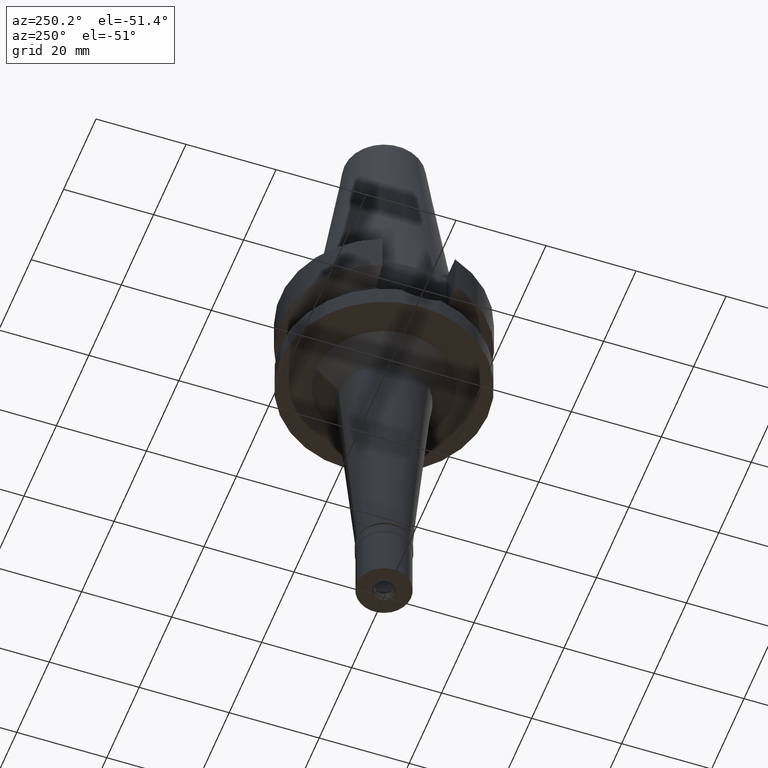
[diagram: clean part render]
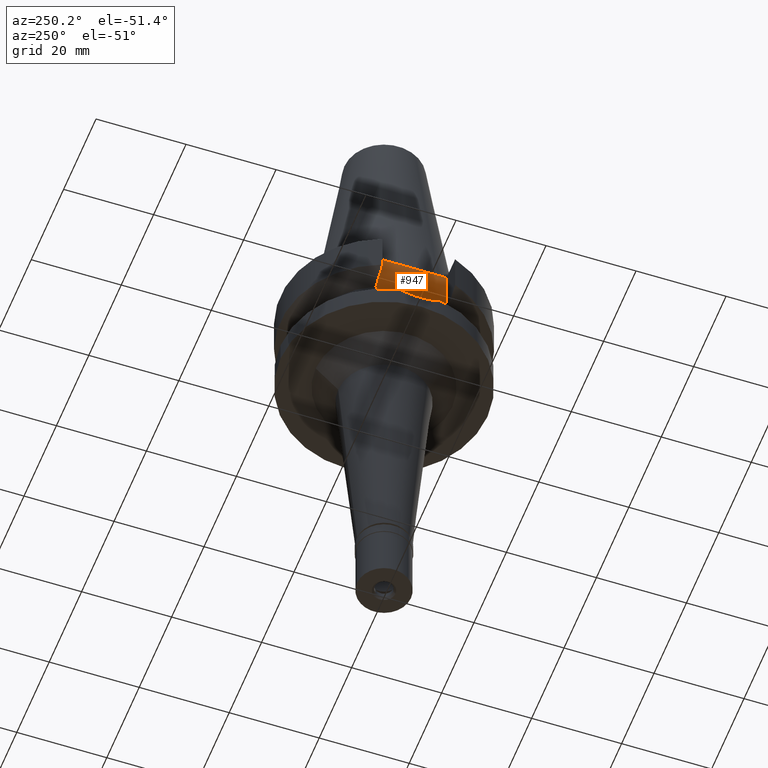
[diagram: same view with one face highlighted and labeled with its STEP entity id]
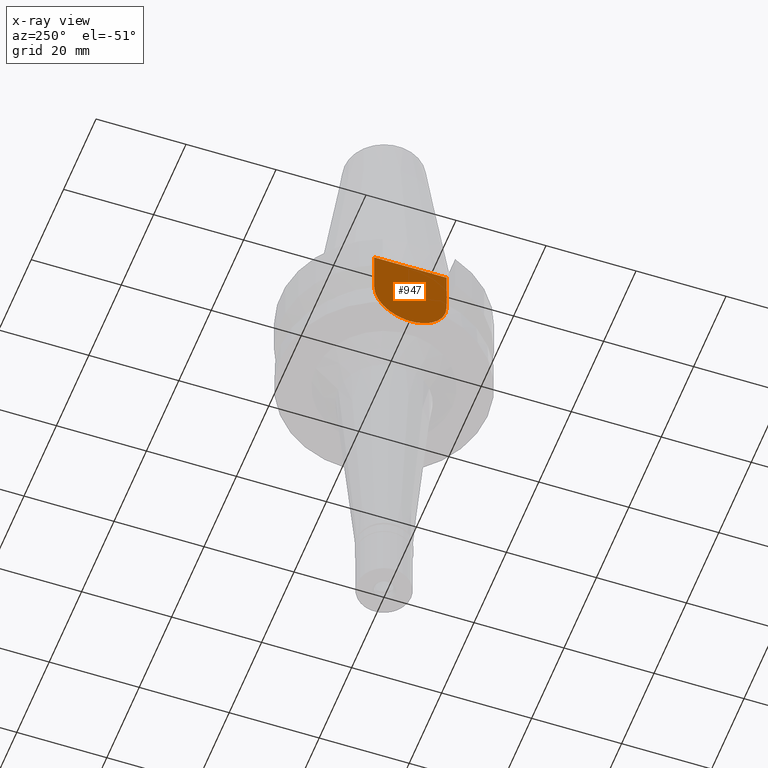
[diagram: x-ray of the same camera — body ghosted, the highlighted face saturated]
A machine part, auxiliary view. The second image highlights one B-rep face of the part: STEP entity #947.
The next image is the same camera in x-ray: the body ghosted, the highlighted face saturated — about 0% of this face is hidden behind the body in this view.
In plain terms, the highlighted planar face has unit normal (-1, 0, 0).
Its self-contained STEP definition (entity closure, byte-faithful):
#28 = VECTOR ( 'NONE', #1097, 1000.000000000000000 ) ;
#100 = DIRECTION ( 'NONE',  ( 0.0000000000000000000, 0.0000000000000000000, 1.000000000000000000 ) ) ;
#152 = CARTESIAN_POINT ( 'NONE',  ( -16.29999999999999716, -8.050000000000000711, -1.000000000000000000 ) ) ;
#202 = ORIENTED_EDGE ( 'NONE', *, *, #746, .F. ) ;
#339 = ORIENTED_EDGE ( 'NONE', *, *, #2891, .F. ) ;
#349 = CARTESIAN_POINT ( 'NONE',  ( -16.29999999999999716, -8.050000000000000711, -1.000000000000000000 ) ) ;
#369 = VERTEX_POINT ( 'NONE', #1563 ) ;
#492 = CARTESIAN_POINT ( 'NONE',  ( -16.29999999999999716, -8.050000000000000711, -10.94999999999999929 ) ) ;
#565 = CARTESIAN_POINT ( 'NONE',  ( -16.29999999999999716, 2.249676170033999711E-14, 0.0000000000000000000 ) ) ;
#707 = DIRECTION ( 'NONE',  ( 0.0000000000000000000, 0.0000000000000000000, 1.000000000000000000 ) ) ;
#746 = EDGE_CURVE ( 'NONE', #2005, #2397, #2094, .T. ) ;
#774 = FACE_OUTER_BOUND ( 'NONE', #2207, .T. ) ;
#909 = CARTESIAN_POINT ( 'NONE',  ( -16.29999999999999716, 8.050000000000000711, -10.94999999999999929 ) ) ;
#947 = ADVANCED_FACE ( 'NONE', ( #774 ), #1212, .T. ) ;
#1050 = DIRECTION ( 'NONE',  ( 0.0000000000000000000, 0.0000000000000000000, -1.000000000000000000 ) ) ;
#1097 = DIRECTION ( 'NONE',  ( 0.0000000000000000000, 1.000000000000000000, 0.0000000000000000000 ) ) ;
#1108 = CARTESIAN_POINT ( 'NONE',  ( -16.29999999999999716, 8.050000000000000711, -10.94999999999999929 ) ) ;
#1152 = EDGE_CURVE ( 'NONE', #2412, #369, #2448, .T. ) ;
#1166 = CARTESIAN_POINT ( 'NONE',  ( -16.29999999999999716, -8.050000000000000711, -1.000000000000000000 ) ) ;
#1212 = PLANE ( 'NONE',  #2003 ) ;
#1282 = CARTESIAN_POINT ( 'NONE',  ( -16.29999999999999716, 1.981478521019999946E-14, -10.94999999999999929 ) ) ;
#1368 = LINE ( 'NONE', #1108, #2791 ) ;
#1563 = CARTESIAN_POINT ( 'NONE',  ( -16.29999999999999716, 8.050000000000000711, -1.000000000000000000 ) ) ;
#1642 = VECTOR ( 'NONE', #1711, 1000.000000000000000 ) ;
#1711 = DIRECTION ( 'NONE',  ( 0.0000000000000000000, 0.0000000000000000000, -1.000000000000000000 ) ) ;
#1741 = EDGE_CURVE ( 'NONE', #2397, #369, #1368, .T. ) ;
#2003 = AXIS2_PLACEMENT_3D ( 'NONE', #565, #2125, #100 ) ;
#2005 = VERTEX_POINT ( 'NONE', #492 ) ;
#2094 = CIRCLE ( 'NONE', #2528, 8.050000000000000711 ) ;
#2125 = DIRECTION ( 'NONE',  ( -1.000000000000000000, 0.0000000000000000000, 0.0000000000000000000 ) ) ;
#2181 = LINE ( 'NONE', #349, #1642 ) ;
#2207 = EDGE_LOOP ( 'NONE', ( #2234, #202, #339, #2512 ) ) ;
#2234 = ORIENTED_EDGE ( 'NONE', *, *, #1741, .F. ) ;
#2397 = VERTEX_POINT ( 'NONE', #909 ) ;
#2412 = VERTEX_POINT ( 'NONE', #1166 ) ;
#2448 = LINE ( 'NONE', #152, #28 ) ;
#2512 = ORIENTED_EDGE ( 'NONE', *, *, #1152, .T. ) ;
#2528 = AXIS2_PLACEMENT_3D ( 'NONE', #1282, #2886, #1050 ) ;
#2791 = VECTOR ( 'NONE', #707, 1000.000000000000000 ) ;
#2886 = DIRECTION ( 'NONE',  ( 1.000000000000000000, 0.0000000000000000000, 0.0000000000000000000 ) ) ;
#2891 = EDGE_CURVE ( 'NONE', #2412, #2005, #2181, .T. ) ;